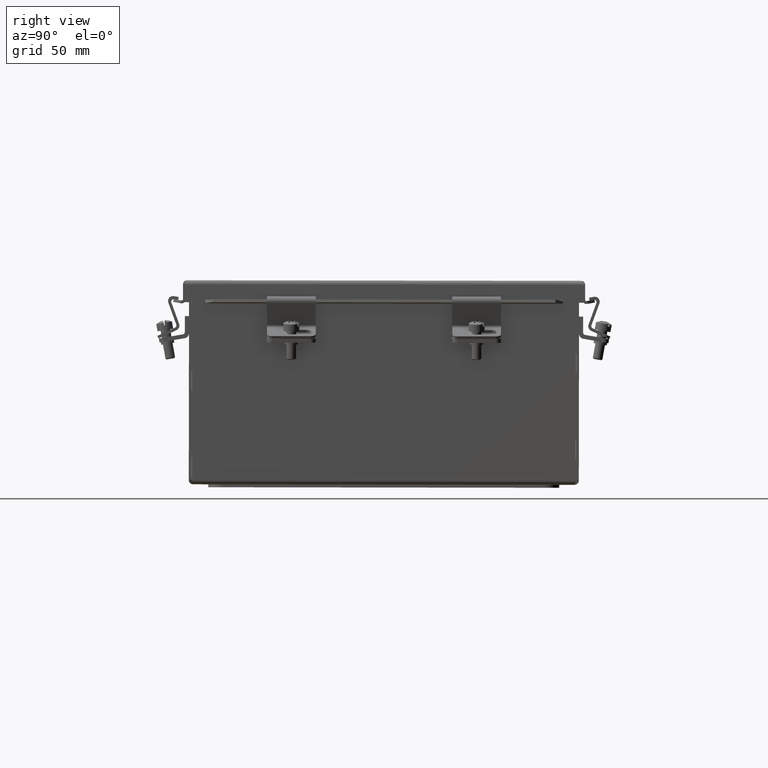
[diagram: clean part render]
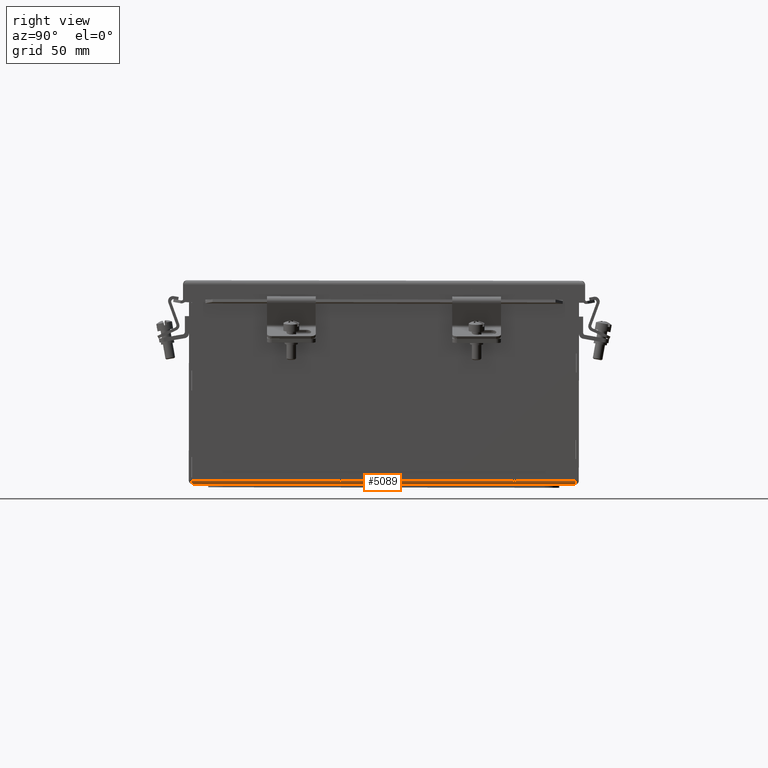
[diagram: same view with one face highlighted and labeled with its STEP entity id]
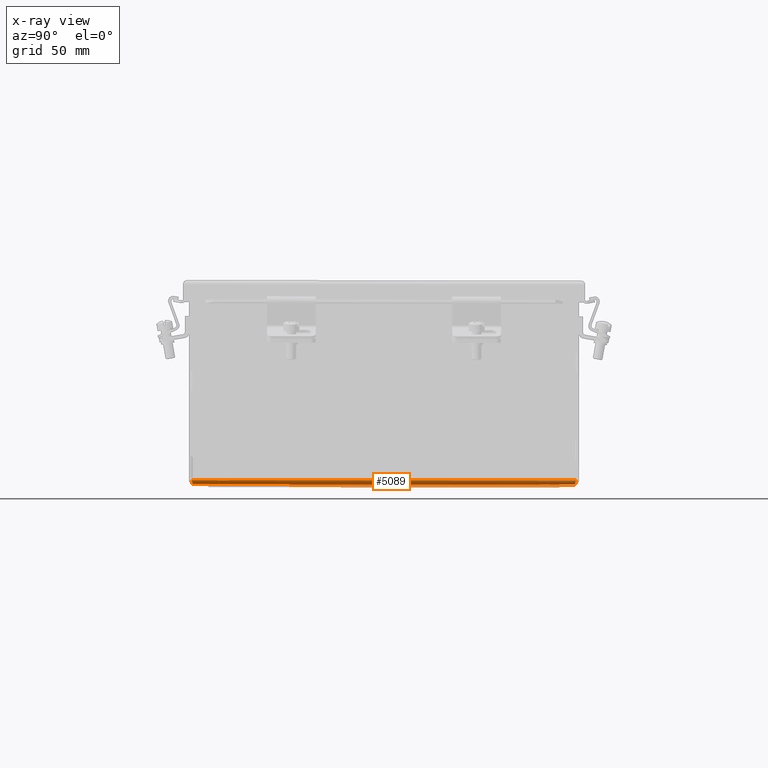
[diagram: x-ray of the same camera — body ghosted, the highlighted face saturated]
A machine part, right view. The second image highlights one B-rep face of the part: STEP entity #5089.
The next image is the same camera in x-ray: the body ghosted, the highlighted face saturated — about 0% of this face is hidden behind the body in this view.
In plain terms, the highlighted cylindrical surface (edge-blend (fillet) strip) has radius 2.6733 mm, axis along (-0, -1, 0.0014).
Its self-contained STEP definition (entity closure, byte-faithful):
#233=B_SPLINE_CURVE_WITH_KNOTS('',3,(#9083,#9084,#9085,#9086,#9087,#9088,
#9089),.UNSPECIFIED.,.F.,.F.,(4,3,4),(0.,0.897597901025628,1.57079632679485),
 .UNSPECIFIED.);
#234=B_SPLINE_CURVE_WITH_KNOTS('',3,(#9091,#9092,#9093,#9094,#9095,#9096,
#9097),.UNSPECIFIED.,.F.,.F.,(4,3,4),(0.,0.897597901025658,1.5707963267949),
 .UNSPECIFIED.);
#748=CYLINDRICAL_SURFACE('',#5698,0.105249999999999);
#1013=FACE_OUTER_BOUND('',#1314,.T.);
#1314=EDGE_LOOP('',(#4624,#4625,#4626,#4627));
#1766=LINE('',#8872,#2233);
#1802=LINE('',#9090,#2269);
#2233=VECTOR('',#6828,0.393700787401575);
#2269=VECTOR('',#6900,0.393700787401575);
#2773=VERTEX_POINT('',#8869);
#2774=VERTEX_POINT('',#8871);
#2793=VERTEX_POINT('',#9005);
#2795=VERTEX_POINT('',#9082);
#3371=EDGE_CURVE('',#2773,#2774,#1766,.T.);
#3415=EDGE_CURVE('',#2795,#2773,#233,.T.);
#3416=EDGE_CURVE('',#2793,#2795,#1802,.T.);
#3417=EDGE_CURVE('',#2774,#2793,#234,.T.);
#4624=ORIENTED_EDGE('',*,*,#3371,.F.);
#4625=ORIENTED_EDGE('',*,*,#3415,.F.);
#4626=ORIENTED_EDGE('',*,*,#3416,.F.);
#4627=ORIENTED_EDGE('',*,*,#3417,.F.);
#5089=ADVANCED_FACE('',(#1013),#748,.T.);
#5698=AXIS2_PLACEMENT_3D('',#9081,#6898,#6899);
#6828=DIRECTION('',(-1.,3.79972344384234E-16,-1.29422102588231E-30));
#6898=DIRECTION('center_axis',(1.,-1.3987061727561E-16,0.));
#6899=DIRECTION('ref_axis',(0.,0.,-1.));
#6900=DIRECTION('',(1.,0.,0.));
#8869=CARTESIAN_POINT('',(9.92529289321881,12.,0.105249999999998));
#8871=CARTESIAN_POINT('',(0.0747071067811829,12.,0.10525));
#8872=CARTESIAN_POINT('',(4.99999999999999,12.,0.105250000000001));
#9005=CARTESIAN_POINT('',(0.105249999999997,11.89475,-2.18547839493141E-17));
#9081=CARTESIAN_POINT('Origin',(5.,11.89475,0.10525));
#9082=CARTESIAN_POINT('',(9.89474999999999,11.89475,-2.18547839493141E-17));
#9083=CARTESIAN_POINT('Ctrl Pts',(9.89474999999999,11.89475,4.37095678986282E-16));
#9084=CARTESIAN_POINT('Ctrl Pts',(9.90056769394644,11.926240726361,1.33314182090816E-15));
#9085=CARTESIAN_POINT('Ctrl Pts',(9.90638538789287,11.9573787440268,0.0151169781145802));
#9086=CARTESIAN_POINT('Ctrl Pts',(9.91220308183932,11.9770151165689,0.0396127421322553));
#9087=CARTESIAN_POINT('Ctrl Pts',(9.91656635229915,11.9917423959755,0.0579845651455116));
#9088=CARTESIAN_POINT('Ctrl Pts',(9.92092962275898,12.,0.0816319552292595));
#9089=CARTESIAN_POINT('Ctrl Pts',(9.92529289321881,12.,0.105249999999996));
#9090=CARTESIAN_POINT('',(2.552625,11.89475,0.));
#9091=CARTESIAN_POINT('Ctrl Pts',(0.0747071067811828,12.,0.105249999999999));
#9092=CARTESIAN_POINT('Ctrl Pts',(0.0805248007276237,12.,0.0737592736390152));
#9093=CARTESIAN_POINT('Ctrl Pts',(0.0863424946740647,11.9848831614572,0.0426210885067665));
#9094=CARTESIAN_POINT('Ctrl Pts',(0.0921601886205056,11.9603873775007,0.0229847398884292));
#9095=CARTESIAN_POINT('Ctrl Pts',(0.0965234590803363,11.9420155395333,0.0082574784246762));
#9096=CARTESIAN_POINT('Ctrl Pts',(0.100886729540167,11.9183680447707,-1.63910879619856E-15));
#9097=CARTESIAN_POINT('Ctrl Pts',(0.105249999999998,11.89475,-1.63910879619856E-15));